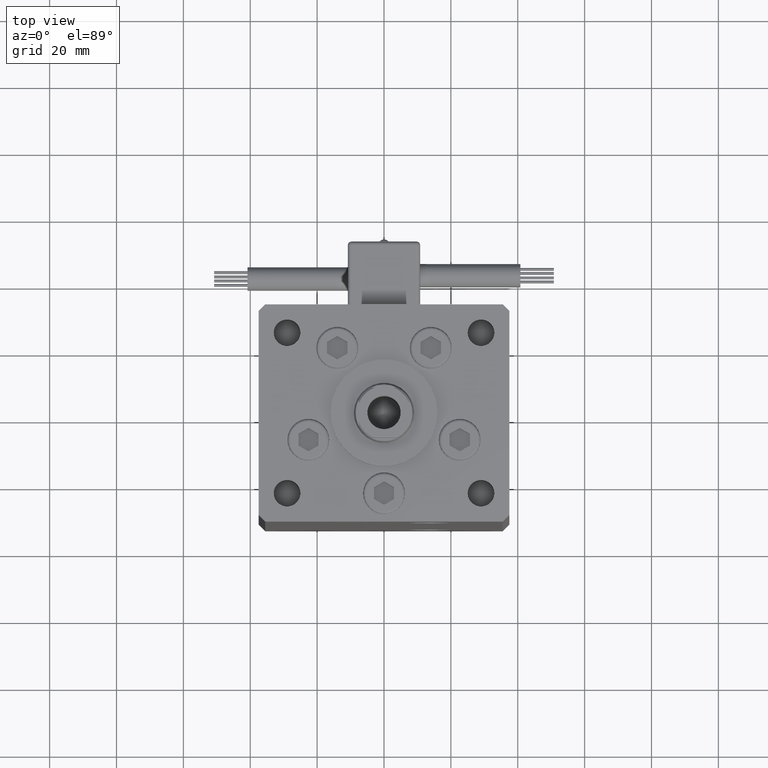
[diagram: clean part render]
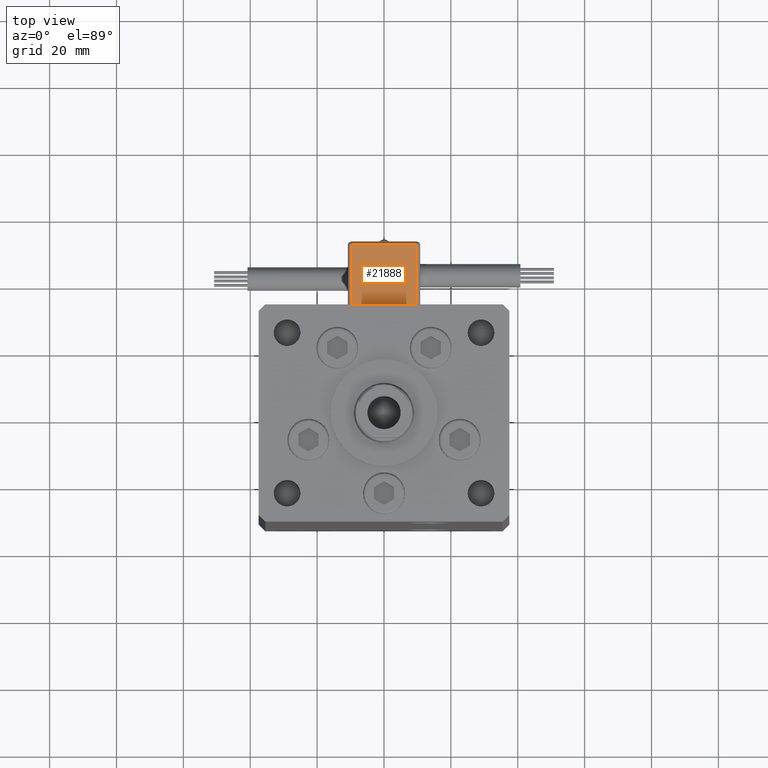
[diagram: same view with one face highlighted and labeled with its STEP entity id]
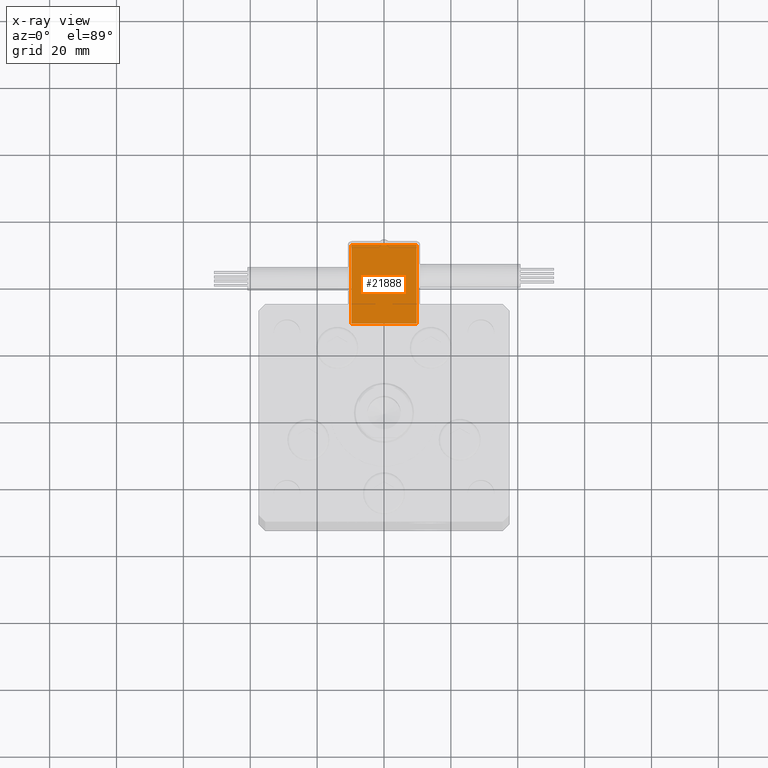
[diagram: x-ray of the same camera — body ghosted, the highlighted face saturated]
A machine part, top view. The second image highlights one B-rep face of the part: STEP entity #21888.
The next image is the same camera in x-ray: the body ghosted, the highlighted face saturated — about 0% of this face is hidden behind the body in this view.
In plain terms, the highlighted planar face has unit normal (0, 0, -1).
Its self-contained STEP definition (entity closure, byte-faithful):
#921 = VECTOR ( 'NONE', #18472, 1000.000000000000000 ) ;
#1962 = DIRECTION ( 'NONE',  ( -1.000000000000000000, 0.000000000000000000, -2.220446049250000002E-16 ) ) ;
#2229 = EDGE_CURVE ( 'NONE', #20869, #52676, #10329, .T. ) ;
#3379 = DIRECTION ( 'NONE',  ( 1.000000000000000000, 0.000000000000000000, 2.220446049250000002E-16 ) ) ;
#5175 = LINE ( 'NONE', #5732, #921 ) ;
#5526 = PLANE ( 'NONE',  #20419 ) ;
#5732 = CARTESIAN_POINT ( 'NONE',  ( 9.799999999999998934, 51.50000000000000000, -25.00000000000000000 ) ) ;
#7389 = LINE ( 'NONE', #19330, #10944 ) ;
#8887 = VECTOR ( 'NONE', #3379, 1000.000000000000000 ) ;
#10329 = LINE ( 'NONE', #28638, #8887 ) ;
#10944 = VECTOR ( 'NONE', #16246, 1000.000000000000000 ) ;
#11232 = VERTEX_POINT ( 'NONE', #17786 ) ;
#13554 = CARTESIAN_POINT ( 'NONE',  ( 10.80000000000000071, 51.50000000000000000, -25.00000000000000000 ) ) ;
#16246 = DIRECTION ( 'NONE',  ( 3.108624468950000014E-32, -1.000000000000000000, -1.400000000000000069E-16 ) ) ;
#16842 = EDGE_CURVE ( 'NONE', #52676, #42628, #5175, .T. ) ;
#16975 = ORIENTED_EDGE ( 'NONE', *, *, #2229, .T. ) ;
#17786 = CARTESIAN_POINT ( 'NONE',  ( -9.799999999999998934, 50.50000000000000000, -25.00000000000000000 ) ) ;
#18472 = DIRECTION ( 'NONE',  ( -3.108624468950000014E-32, 1.000000000000000000, 1.400000000000000069E-16 ) ) ;
#19330 = CARTESIAN_POINT ( 'NONE',  ( -9.799999999999998934, 51.50000000000000000, -25.00000000000000000 ) ) ;
#20419 = AXIS2_PLACEMENT_3D ( 'NONE', #13554, #34397, #31322 ) ;
#20869 = VERTEX_POINT ( 'NONE', #26295 ) ;
#21888 = ADVANCED_FACE ( 'NONE', ( #39957 ), #5526, .F. ) ;
#26295 = CARTESIAN_POINT ( 'NONE',  ( -9.799999999999998934, 27.00000000000000000, -25.00000000000000000 ) ) ;
#26956 = EDGE_CURVE ( 'NONE', #42628, #11232, #27204, .T. ) ;
#27204 = LINE ( 'NONE', #44193, #35717 ) ;
#28638 = CARTESIAN_POINT ( 'NONE',  ( 10.80000000000000071, 27.00000000000000000, -25.00000000000000000 ) ) ;
#31322 = DIRECTION ( 'NONE',  ( 0.000000000000000000, -1.000000000000000000, -1.400000000000000069E-16 ) ) ;
#33357 = ORIENTED_EDGE ( 'NONE', *, *, #16842, .T. ) ;
#33958 = ORIENTED_EDGE ( 'NONE', *, *, #34414, .T. ) ;
#34397 = DIRECTION ( 'NONE',  ( 2.220446049250000002E-16, 1.400000000000000069E-16, -1.000000000000000000 ) ) ;
#34414 = EDGE_CURVE ( 'NONE', #11232, #20869, #7389, .T. ) ;
#35717 = VECTOR ( 'NONE', #1962, 1000.000000000000000 ) ;
#39957 = FACE_OUTER_BOUND ( 'NONE', #49903, .T. ) ;
#42628 = VERTEX_POINT ( 'NONE', #47729 ) ;
#44193 = CARTESIAN_POINT ( 'NONE',  ( 10.80000000000000071, 50.50000000000000000, -25.00000000000000000 ) ) ;
#46001 = ORIENTED_EDGE ( 'NONE', *, *, #26956, .T. ) ;
#47729 = CARTESIAN_POINT ( 'NONE',  ( 9.799999999999998934, 50.50000000000000000, -25.00000000000000000 ) ) ;
#49903 = EDGE_LOOP ( 'NONE', ( #33958, #16975, #33357, #46001 ) ) ;
#52469 = CARTESIAN_POINT ( 'NONE',  ( 9.799999999999998934, 27.00000000000000000, -25.00000000000000000 ) ) ;
#52676 = VERTEX_POINT ( 'NONE', #52469 ) ;